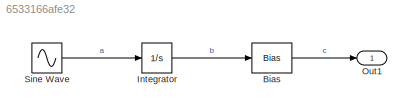
MODEL slx_6533166afe32
KIND model
CONFIG AbsTol = auto
CONFIG EnableMultiTasking = on
CONFIG FixedStep = auto
CONFIG MaxStep = auto
CONFIG MinStep = auto
CONFIG RelTol = 1e-3
CONFIG SampleTimeConstraint = Unconstrained
CONFIG Solver = ode45
CONFIG SolverName = ode45
CONFIG StartTime = 0.0
CONFIG StopTime = 10.0
BLOCK [Bias] Bias
  Bias = 3
  SaturateOnIntegerOverflow = off
BLOCK [Integrator] Integrator
  AttributesFormatString = I.C. = %<InitialCondition>
  Ports = [1, 1]
BLOCK [Outport] Out1
  IconDisplay = Port number
BLOCK [Sin] Sine Wave
  Frequency = 30
  Ports = [0, 1]
  SampleTime = 0
LINE Bias:1 -> Out1:1
LINE Integrator:1 -> Bias:1
LINE Sine Wave:1 -> Integrator:1
